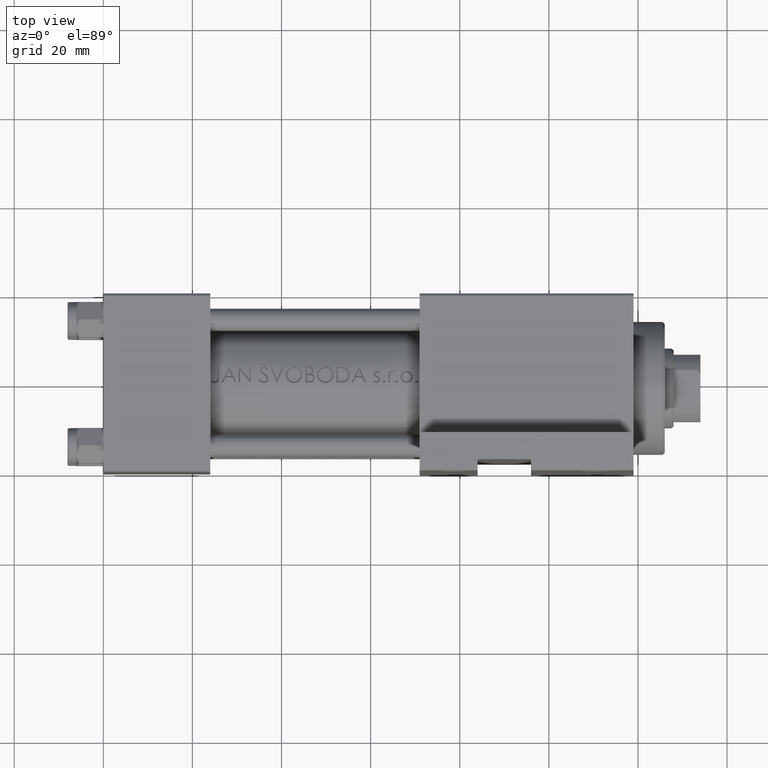
[diagram: clean part render]
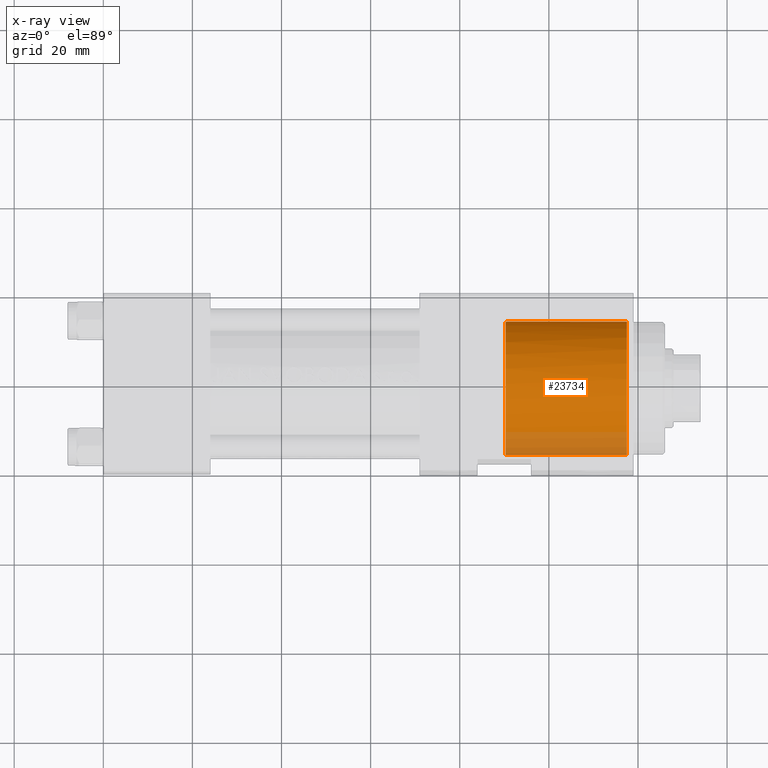
[diagram: x-ray — body ghosted, one internal face saturated and labeled with its STEP entity id]
A machine part, top view, then the same camera in x-ray: the body is ghosted and one INTERNAL B-rep face — a face not visible from any outside direction — is saturated and labeled: STEP entity #23734.
In plain terms, the highlighted cylindrical surface (partial cylindrical patch) has radius 15 mm, axis along (1, 0, 0).
Its self-contained STEP definition (entity closure, byte-faithful):
#3012 = DIRECTION ( 'NONE',  ( 0.000000000000000000, 0.000000000000000000, 1.000000000000000000 ) ) ;
#4669 = CIRCLE ( 'NONE', #26189, 15.00000000000000000 ) ;
#4845 = CARTESIAN_POINT ( 'NONE',  ( 90.30000000000001137, -1.899052395280420136, 13.87930105885285492 ) ) ;
#6673 = DIRECTION ( 'NONE',  ( 0.000000000000000000, 0.000000000000000000, -1.000000000000000000 ) ) ;
#7801 = CARTESIAN_POINT ( 'NONE',  ( 90.30000000000001137, -1.899052395280420136, 13.87930105885285492 ) ) ;
#7969 = CARTESIAN_POINT ( 'NONE',  ( 90.48627106246553353, -1.281108574220369167, 13.95816952780117326 ) ) ;
#8115 = VERTEX_POINT ( 'NONE', #23155 ) ;
#9934 = DIRECTION ( 'NONE',  ( 1.000000000000000000, -0.000000000000000000, -0.000000000000000000 ) ) ;
#10271 = DIRECTION ( 'NONE',  ( 1.000000000000000000, -0.000000000000000000, -0.000000000000000000 ) ) ;
#10714 = AXIS2_PLACEMENT_3D ( 'NONE', #24391, #42914, #3012 ) ;
#11268 = VERTEX_POINT ( 'NONE', #43810 ) ;
#13000 = CIRCLE ( 'NONE', #10714, 15.00000000000000000 ) ;
#13448 = AXIS2_PLACEMENT_3D ( 'NONE', #17719, #10271, #6673 ) ;
#16984 = EDGE_CURVE ( 'NONE', #11268, #24247, #13000, .T. ) ;
#17719 = CARTESIAN_POINT ( 'NONE',  ( 90.30000000000001137, 0.000000000000000000, -1.000000000000000888 ) ) ;
#18272 = CARTESIAN_POINT ( 'NONE',  ( 90.30000000000001137, 0.000000000000000000, -1.000000000000000888 ) ) ;
#18609 = CARTESIAN_POINT ( 'NONE',  ( 117.5000000000000000, 0.000000000000000000, -16.00000000000000000 ) ) ;
#19008 = CARTESIAN_POINT ( 'NONE',  ( 90.58000000000154728, -0.6482402319151109316, 13.99999999999999822 ) ) ;
#20246 = EDGE_CURVE ( 'NONE', #24135, #24179, #4669, .T. ) ;
#20397 = LINE ( 'NONE', #46386, #43650 ) ;
#21354 = VECTOR ( 'NONE', #9934, 1000.000000000000000 ) ;
#23155 = CARTESIAN_POINT ( 'NONE',  ( 90.58000000000154728, 1.837042777381032933E-15, 13.99999999999999822 ) ) ;
#23734 = ADVANCED_FACE ( 'NONE', ( #44176 ), #36268, .F. ) ;
#24135 = VERTEX_POINT ( 'NONE', #7801 ) ;
#24179 = VERTEX_POINT ( 'NONE', #34258 ) ;
#24247 = VERTEX_POINT ( 'NONE', #18609 ) ;
#24391 = CARTESIAN_POINT ( 'NONE',  ( 117.5000000000000000, 0.000000000000000000, -1.000000000000000888 ) ) ;
#25633 = ORIENTED_EDGE ( 'NONE', *, *, #16984, .T. ) ;
#25737 = DIRECTION ( 'NONE',  ( 0.000000000000000000, 0.000000000000000000, -1.000000000000000000 ) ) ;
#25865 = ORIENTED_EDGE ( 'NONE', *, *, #35339, .T. ) ;
#26189 = AXIS2_PLACEMENT_3D ( 'NONE', #18272, #43540, #25737 ) ;
#31972 = B_SPLINE_CURVE_WITH_KNOTS ( 'NONE', 3,
 ( #4845, #7969, #19008, #44529 ),
 .UNSPECIFIED., .F., .F.,
 ( 4, 4 ),
 ( 0.000000000000000000, 0.001923267627926022365 ),
 .UNSPECIFIED. ) ;
#34258 = CARTESIAN_POINT ( 'NONE',  ( 90.30000000000001137, 0.000000000000000000, -16.00000000000000000 ) ) ;
#35339 = EDGE_CURVE ( 'NONE', #8115, #11268, #20397, .T. ) ;
#35835 = EDGE_LOOP ( 'NONE', ( #44210, #25865, #25633, #38859, #46940 ) ) ;
#36268 = CYLINDRICAL_SURFACE ( 'NONE', #13448, 15.00000000000000000 ) ;
#38859 = ORIENTED_EDGE ( 'NONE', *, *, #40331, .F. ) ;
#38952 = DIRECTION ( 'NONE',  ( 1.000000000000000000, -0.000000000000000000, -0.000000000000000000 ) ) ;
#39772 = CARTESIAN_POINT ( 'NONE',  ( 90.30000000000001137, 0.000000000000000000, -16.00000000000000000 ) ) ;
#40331 = EDGE_CURVE ( 'NONE', #24179, #24247, #42890, .T. ) ;
#42890 = LINE ( 'NONE', #39772, #21354 ) ;
#42914 = DIRECTION ( 'NONE',  ( 1.000000000000000000, 0.000000000000000000, 0.000000000000000000 ) ) ;
#43540 = DIRECTION ( 'NONE',  ( 1.000000000000000000, 0.000000000000000000, 0.000000000000000000 ) ) ;
#43650 = VECTOR ( 'NONE', #38952, 1000.000000000000000 ) ;
#43810 = CARTESIAN_POINT ( 'NONE',  ( 117.5000000000000000, 1.836970198721029589E-15, 13.99999999999999822 ) ) ;
#44176 = FACE_OUTER_BOUND ( 'NONE', #35835, .T. ) ;
#44210 = ORIENTED_EDGE ( 'NONE', *, *, #45860, .T. ) ;
#44529 = CARTESIAN_POINT ( 'NONE',  ( 90.58000000000154728, 1.837042777381032933E-15, 13.99999999999999822 ) ) ;
#45860 = EDGE_CURVE ( 'NONE', #24135, #8115, #31972, .T. ) ;
#46386 = CARTESIAN_POINT ( 'NONE',  ( 90.30000000000001137, 1.836970198721029589E-15, 13.99999999999999822 ) ) ;
#46940 = ORIENTED_EDGE ( 'NONE', *, *, #20246, .F. ) ;